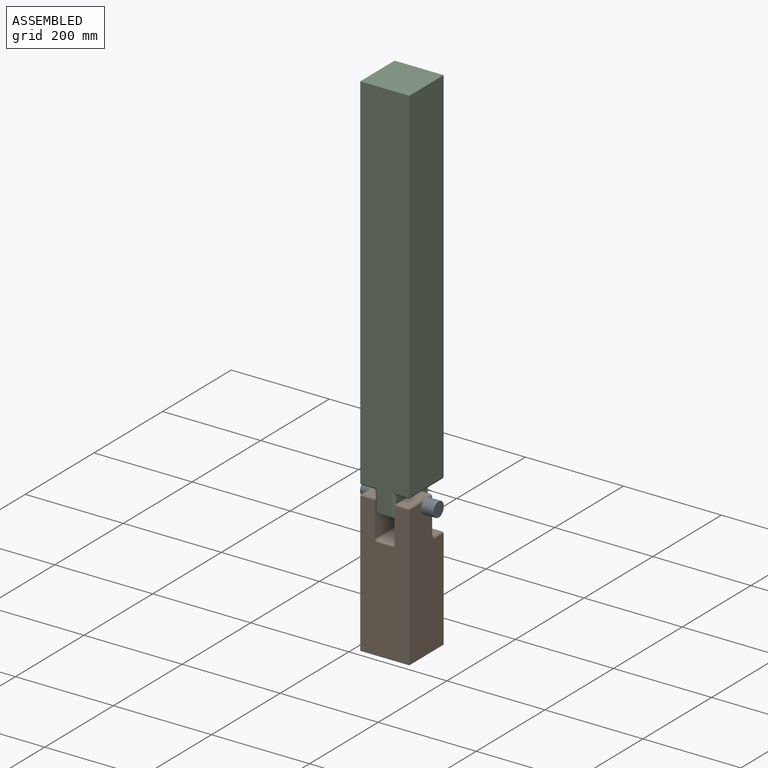
[diagram: assembled view]
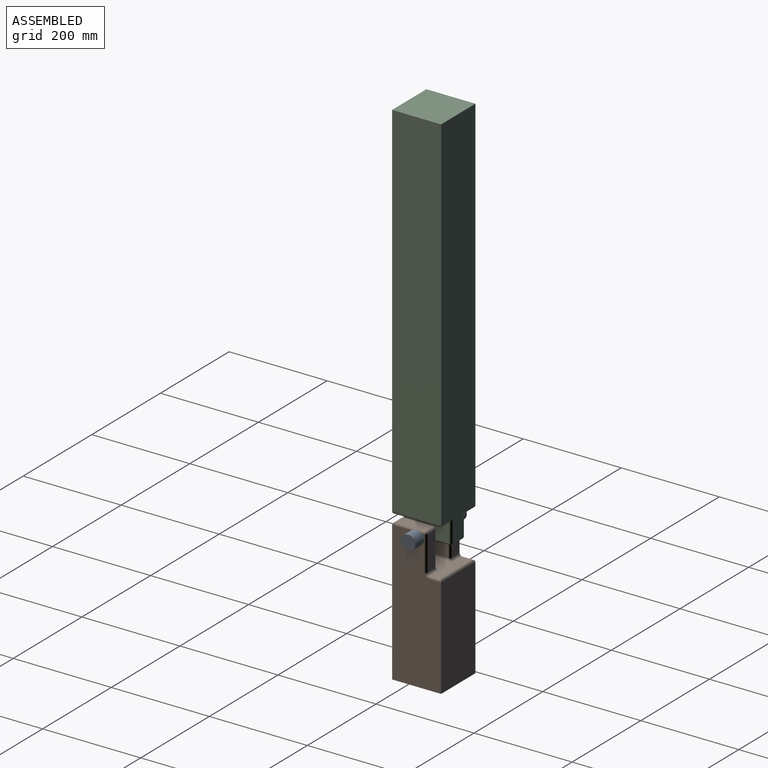
[diagram: assembled view, second angle]
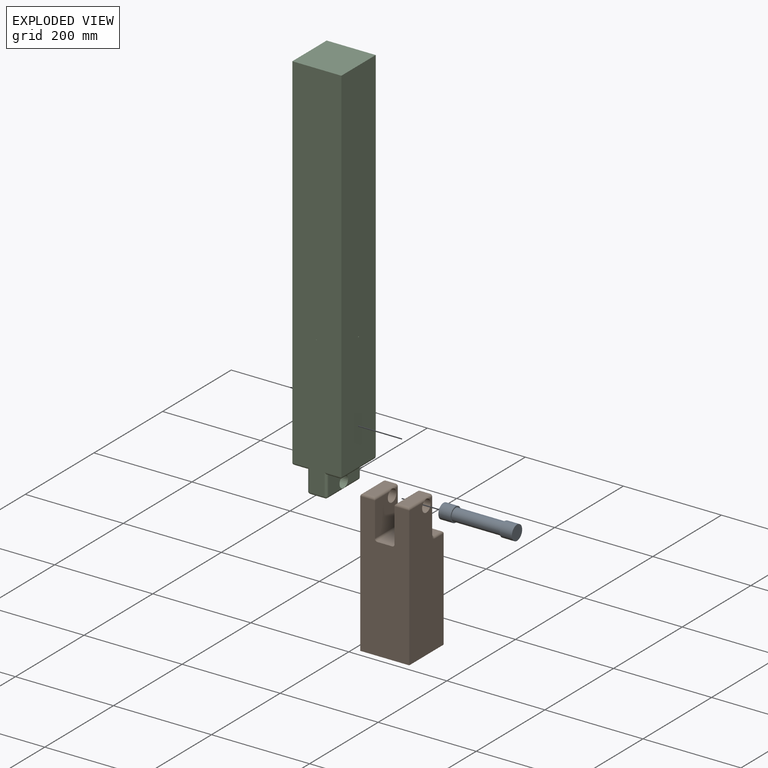
[diagram: exploded view]
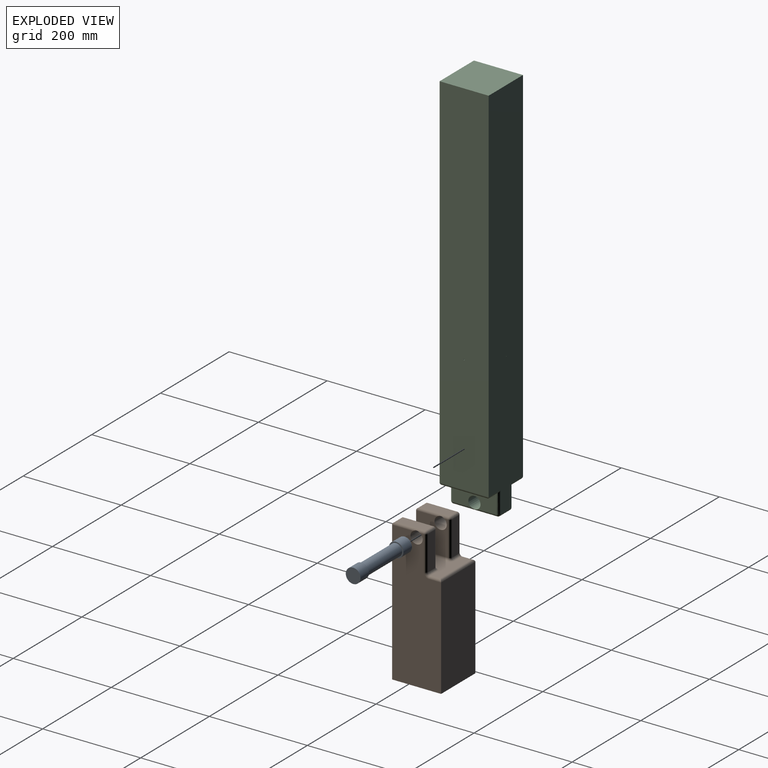
[diagram: exploded view, second angle]
ASSEMBLY  parts=3 mates=2
PART A: 7 faces, bbox 150x30x30 mm
  f0: cylinder r=12.5mm len=100mm, axis (-1,0,0), area 7854mm2, adj f2,f5
  f1: cylinder r=15mm len=30mm, axis (1,0,0), area 2356.2mm2, adj f2,f3
  f2: plane 30x30mm, normal (-1,0,0), area 216mm2, adj f0,f1
  f3: plane 30x30mm, normal (1,0,0), area 706.9mm2, adj f1
  f4: cylinder r=15mm len=30mm, axis (-1,0,0), area 2356.2mm2, adj f5,f6
  f5: plane 30x30mm, normal (1,0,0), area 216mm2, adj f0,f4
  f6: plane 30x30mm, normal (-1,0,0), area 706.9mm2, adj f4
PART B: 41 faces, bbox 100x290x100 mm
  f0: plane 70x20mm, normal (0,0,1), area 1400mm2, adj f18,f19,f23,f24
  f1: plane 60x20mm, normal (0,-1,0), area 1200mm2, adj f14,f16,f19,f20
  f2: plane 60x20mm, normal (0,-1,0), area 1200mm2, adj f27,f30,f33,f34
  f3: plane 285x100mm, normal (1,0,0), area 25256.1mm2, adj f4,f6,f7,f10,f27,f31,f32,f35
  f4: plane 205x100mm, normal (0,0,1), area 20500mm2, adj f3,f5,f7,f28
  f5: plane 285x100mm, normal (-1,0,0), area 25256.1mm2, adj f4,f6,f7,f11,f20,f24,f25,f26
  f6: plane 285x100mm, normal (0,0,-1), area 25510.7mm2, adj f3,f5,f7,f8,f9,f12,f16,f17
  f7: plane 100x100mm, normal (0,1,0), area 10000mm2, adj f3,f4,f5,f6
  f8: plane 70x65mm, normal (1,0,0), area 4084.7mm2, adj f6,f11,f14,f17,f18
  f9: plane 70x65mm, normal (-1,0,0), area 4084.7mm2, adj f6,f10,f34,f38,f40
  f10: cylinder r=12.5mm len=30mm, axis (1,0,0), area 2345mm2, adj f3,f9,f27,f34
  f11: cylinder r=12.5mm len=30mm, axis (1,0,0), area 2345mm2, adj f5,f8,f14,f20
  f12: plane 95x90mm, normal (0,-1,0), area 4092.9mm2, adj f6,f17,f21,f23,f26,f28,f31,f37
  f13: plane 70x20mm, normal (0,0,1), area 1400mm2, adj f32,f33,f37,f38
  f14: cylinder r=5mm len=65mm, axis (0,0,-1), area 469.9mm2, adj f1,f8,f11,f15,f16
  f15: sphere r=5mm, area 39.3mm2, adj f14,f18,f19
  f16: cylinder r=5mm len=30mm, axis (-1,0,0), area 207.1mm2, adj f1,f6,f14,f20
  f17: cylinder r=5mm len=65mm, axis (0,0,1), area 510.5mm2, adj f6,f8,f12,f21
  f18: cylinder r=5mm len=70mm, axis (0,-1,0), area 549.8mm2, adj f0,f8,f15,f21
  f19: cylinder r=5mm len=20mm, axis (1,0,0), area 157.1mm2, adj f0,f1,f15,f22
  f20: cylinder r=5mm len=65mm, axis (0,0,-1), area 469.9mm2, adj f1,f5,f11,f16,f22
  f21: torus R=10mm, axis (0,1,0), area 84.1mm2, adj f12,f17,f18,f23
  f22: sphere r=5mm, area 39.3mm2, adj f19,f20,f24
  f23: cylinder r=5mm len=20mm, axis (-1,0,0), area 157.1mm2, adj f0,f12,f21,f25
  f24: cylinder r=5mm len=70mm, axis (0,1,0), area 549.8mm2, adj f0,f5,f22,f25
  f25: torus R=10mm, axis (1,0,0), area 84.1mm2, adj f5,f23,f24,f26
  f26: cylinder r=5mm len=25mm, axis (0,0,1), area 182.1mm2, adj f5,f12,f25,f28
  f27: cylinder r=5mm len=65mm, axis (0,0,-1), area 469.9mm2, adj f2,f3,f10,f29,f30
  f28: cylinder r=5mm len=100mm, axis (-1,0,0), area 756.9mm2, adj f4,f12,f26,f31
  f29: sphere r=5mm, area 39.3mm2, adj f27,f32,f33
  f30: cylinder r=5mm len=30mm, axis (-1,0,0), area 207.1mm2, adj f2,f6,f27,f34
  f31: cylinder r=5mm len=25mm, axis (0,0,1), area 182.1mm2, adj f3,f12,f28,f35
  f32: cylinder r=5mm len=70mm, axis (0,1,0), area 549.8mm2, adj f3,f13,f29,f35
  f33: cylinder r=5mm len=20mm, axis (1,0,0), area 157.1mm2, adj f2,f13,f29,f36
  f34: cylinder r=5mm len=65mm, axis (0,0,1), area 469.9mm2, adj f2,f9,f10,f30,f36
  f35: torus R=10mm, axis (-1,0,0), area 84.1mm2, adj f3,f31,f32,f37
  f36: sphere r=5mm, area 39.3mm2, adj f33,f34,f38
  f37: cylinder r=5mm len=20mm, axis (-1,0,0), area 157.1mm2, adj f12,f13,f35,f39
  f38: cylinder r=5mm len=70mm, axis (0,1,0), area 549.8mm2, adj f9,f13,f36,f39
  f39: torus R=10mm, axis (0,1,0), area 84.1mm2, adj f12,f37,f38,f40
  f40: cylinder r=5mm len=65mm, axis (0,0,-1), area 510.5mm2, adj f6,f9,f12,f39
PART C: 32 faces, bbox 100x100x790 mm
  f0: plane 785x100mm, normal (0,-1,0), area 75349.2mm2, adj f2,f5,f7,f8,f14,f15,f19,f24
  f1: plane 785x100mm, normal (0,1,0), area 75349.2mm2, adj f2,f4,f7,f8,f18,f21,f26,f30
  f2: plane 740x100mm, normal (1,0,0), area 73996.9mm2, adj f0,f1,f3,f8,f16
  f3: cylinder r=1mm len=100mm, axis (-1,0,0), area 626.9mm2, adj f2,f4,f5,f7
  f4: cylinder r=0.5mm len=49.13mm, axis (0,-1,0), area 154mm2, adj f1,f3
  f5: cylinder r=0.5mm len=49.13mm, axis (0,-1,0), area 154.4mm2, adj f0,f3
  f6: plane 90x40mm, normal (1,0,0), area 3134.7mm2, adj f9,f12,f15,f20,f21
  f7: plane 740x100mm, normal (-1,0,0), area 73996.9mm2, adj f0,f1,f3,f8,f29
  f8: plane 100x100mm, normal (0,0,1), area 10000mm2, adj f0,f1,f2,f7
  f9: cylinder r=12.5mm len=40mm, axis (1,0,0), area 3141.6mm2, adj f6,f10,f20,f25
  f10: plane 90x40mm, normal (-1,0,0), area 3134.7mm2, adj f9,f13,f24,f25,f30
  f11: plane 90x30mm, normal (0,0,-1), area 2700mm2, adj f19,f20,f25,f26
  f12: plane 90x25mm, normal (0,0,-1), area 2250mm2, adj f6,f14,f16,f18
  f13: plane 90x25mm, normal (0,0,-1), area 2250mm2, adj f10,f27,f29,f31
  f14: cylinder r=5mm len=35mm, axis (1,0,0), area 235.6mm2, adj f0,f12,f15,f16
  f15: cylinder r=5mm len=45mm, axis (0,0,1), area 328.4mm2, adj f0,f6,f14,f17
  f16: cylinder r=5mm len=100mm, axis (0,1,0), area 756.9mm2, adj f2,f12,f14,f18
  f17: sphere r=5mm, area 39.3mm2, adj f15,f19,f20
  f18: cylinder r=5mm len=35mm, axis (-1,0,0), area 235.6mm2, adj f1,f12,f16,f21
  f19: cylinder r=5mm len=30mm, axis (1,0,0), area 235.6mm2, adj f0,f11,f17,f22
  f20: cylinder r=5mm len=90mm, axis (0,-1,0), area 680.5mm2, adj f6,f9,f11,f17,f23
  f21: cylinder r=5mm len=45mm, axis (0,0,-1), area 328.4mm2, adj f1,f6,f18,f23
  f22: sphere r=5mm, area 39.3mm2, adj f19,f24,f25
  f23: sphere r=5mm, area 39.3mm2, adj f20,f21,f26
  f24: cylinder r=5mm len=45mm, axis (0,0,-1), area 328.4mm2, adj f0,f10,f22,f27
  f25: cylinder r=5mm len=90mm, axis (0,1,0), area 680.5mm2, adj f9,f10,f11,f22,f28
  f26: cylinder r=5mm len=30mm, axis (-1,0,0), area 235.6mm2, adj f1,f11,f23,f28
  f27: cylinder r=5mm len=35mm, axis (1,0,0), area 235.6mm2, adj f0,f13,f24,f29
  f28: sphere r=5mm, area 39.3mm2, adj f25,f26,f30
  f29: cylinder r=5mm len=100mm, axis (0,1,0), area 756.9mm2, adj f7,f13,f27,f31
  f30: cylinder r=5mm len=45mm, axis (0,0,1), area 328.4mm2, adj f1,f10,f28,f31
  f31: cylinder r=5mm len=35mm, axis (-1,0,0), area 235.6mm2, adj f1,f13,f29,f30
PLACE A t=(-191.82,-163.97,-408.13)mm
PLACE B rot(axis=(-1,0,0),90deg) t=(-55.31,-235.98,-683.13)mm fixed
PLACE C rot(axis=(-1,0,0),0deg) t=(-117.8,-113.97,-374.57)mm
MATE fastened A.f0 <-> B.f10  axis (-1,0,0) through (-66.82,-163.97,-408.13)mm
MATE revolute C.f9 <-> B.f10  axis (1,0,0) through (-96.82,-163.97,-408.13)mm
